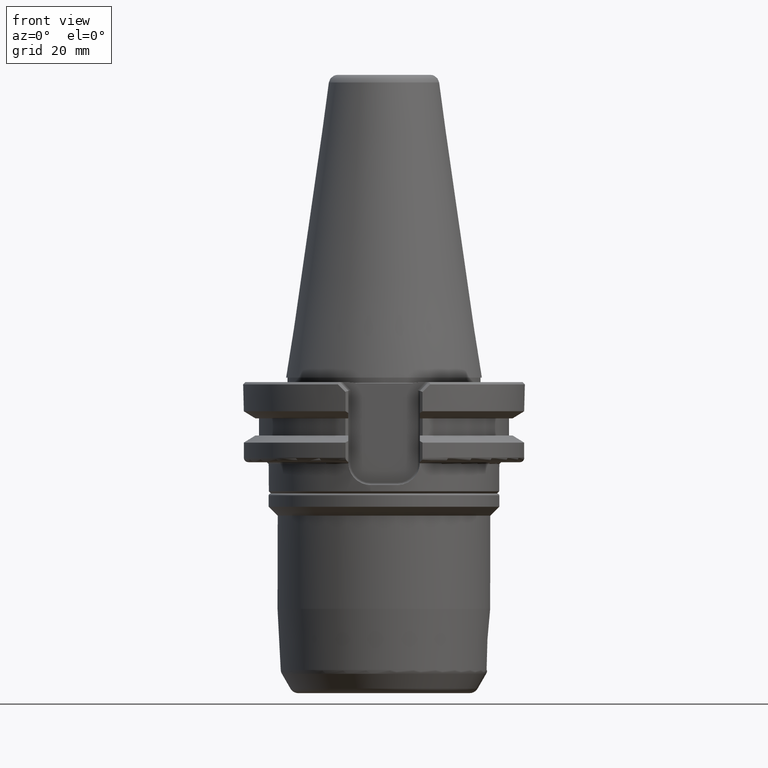
[diagram: clean part render]
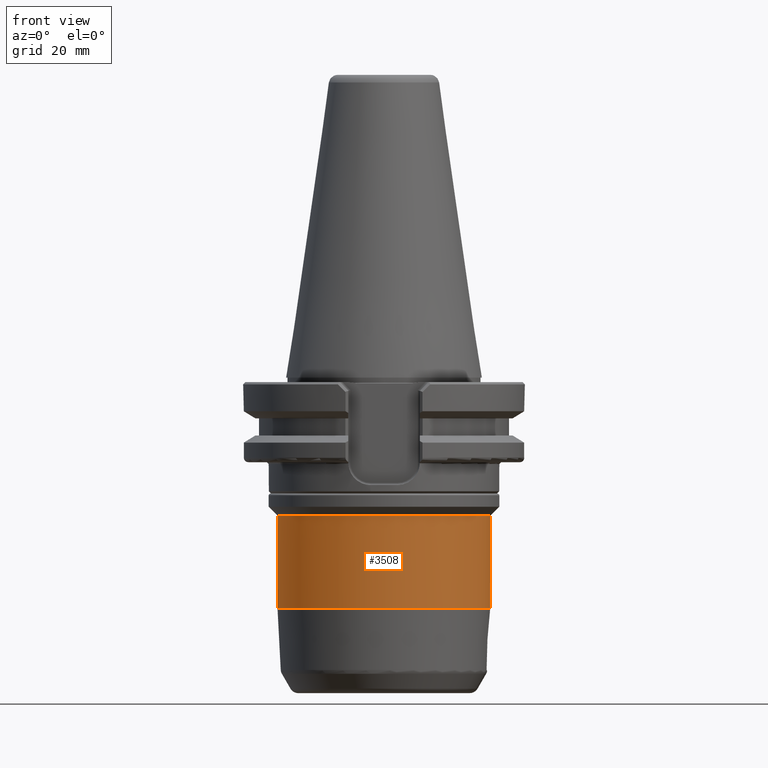
[diagram: same view with one face highlighted and labeled with its STEP entity id]
A machine part, front view. The second image highlights one B-rep face of the part: STEP entity #3508.
In plain terms, the highlighted cylindrical surface (bore or boss wall) has radius 24 mm, axis along (-0, 0, -1).
Its self-contained STEP definition (entity closure, byte-faithful):
#363 = DIRECTION ( 'NONE',  ( 3.491481338843133355E-15, 0.000000000000000000, 1.000000000000000000 ) ) ;
#953 = EDGE_CURVE ( 'NONE', #2065, #2065, #5220, .T. ) ;
#1272 = VERTEX_POINT ( 'NONE', #3617 ) ;
#1724 = FACE_OUTER_BOUND ( 'NONE', #5146, .T. ) ;
#1803 = AXIS2_PLACEMENT_3D ( 'NONE', #4484, #363, #4036 ) ;
#2065 = VERTEX_POINT ( 'NONE', #4261 ) ;
#2144 = AXIS2_PLACEMENT_3D ( 'NONE', #4886, #2592, #2152 ) ;
#2152 = DIRECTION ( 'NONE',  ( 0.000000000000000000, -1.000000000000000000, 0.000000000000000000 ) ) ;
#2557 = DIRECTION ( 'NONE',  ( 3.491481338843133355E-15, 0.000000000000000000, 1.000000000000000000 ) ) ;
#2561 = CIRCLE ( 'NONE', #1803, 24.00000000000000000 ) ;
#2592 = DIRECTION ( 'NONE',  ( -3.491481338843133355E-15, 0.000000000000000000, -1.000000000000000000 ) ) ;
#2620 = DIRECTION ( 'NONE',  ( 1.224646799150000575E-16, 1.000000000000000000, 0.000000000000000000 ) ) ;
#3098 = ORIENTED_EDGE ( 'NONE', *, *, #953, .T. ) ;
#3158 = CARTESIAN_POINT ( 'NONE',  ( -1.819061777537272415E-13, 0.000000000000000000, -52.10000000000000142 ) ) ;
#3508 = ADVANCED_FACE ( 'NONE', ( #5832, #1724 ), #5858, .T. ) ;
#3617 = CARTESIAN_POINT ( 'NONE',  ( -1.056459173200614361E-13, 24.00000000000000000, -31.09999999999999787 ) ) ;
#3699 = EDGE_LOOP ( 'NONE', ( #5495 ) ) ;
#3934 = EDGE_CURVE ( 'NONE', #1272, #1272, #2561, .T. ) ;
#4036 = DIRECTION ( 'NONE',  ( 1.224646799150000575E-16, 1.000000000000000000, 0.000000000000000000 ) ) ;
#4261 = CARTESIAN_POINT ( 'NONE',  ( -1.789670254357672618E-13, 24.00000000000000000, -52.10000000000000142 ) ) ;
#4484 = CARTESIAN_POINT ( 'NONE',  ( -1.085850696380214410E-13, 0.000000000000000000, -31.09999999999999787 ) ) ;
#4738 = AXIS2_PLACEMENT_3D ( 'NONE', #3158, #2557, #2620 ) ;
#4886 = CARTESIAN_POINT ( 'NONE',  ( -2.517358045305898834E-13, 0.000000000000000000, -72.09999999999999432 ) ) ;
#5146 = EDGE_LOOP ( 'NONE', ( #3098 ) ) ;
#5220 = CIRCLE ( 'NONE', #4738, 24.00000000000000000 ) ;
#5495 = ORIENTED_EDGE ( 'NONE', *, *, #3934, .F. ) ;
#5832 = FACE_OUTER_BOUND ( 'NONE', #3699, .T. ) ;
#5858 = CYLINDRICAL_SURFACE ( 'NONE', #2144, 24.00000000000000000 ) ;